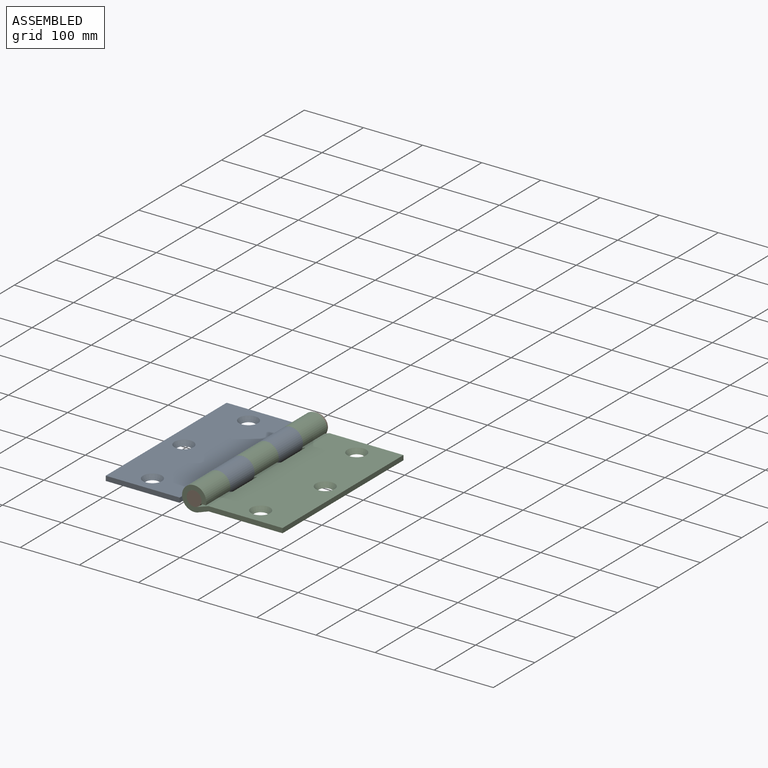
[diagram: assembled view]
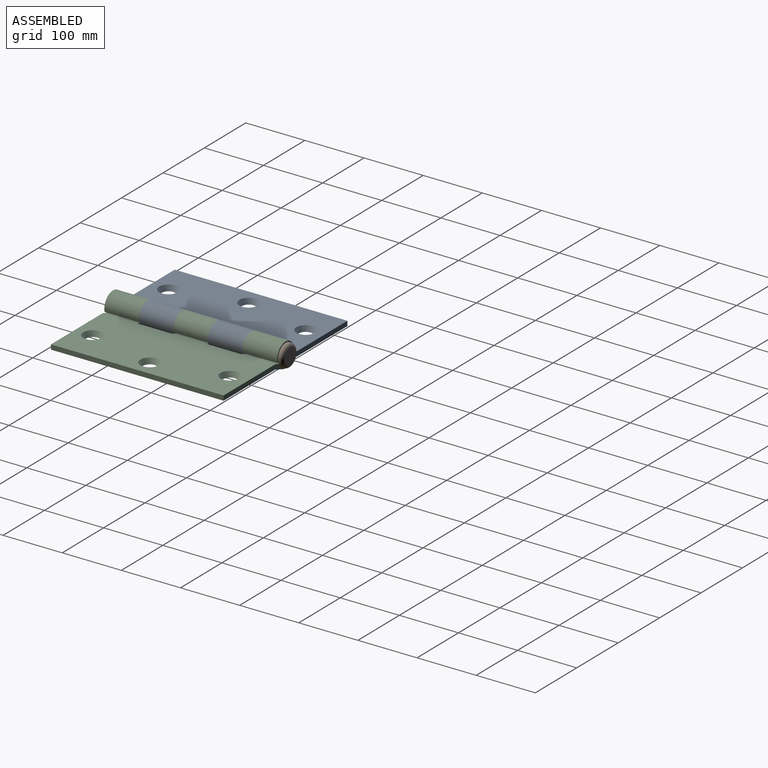
[diagram: assembled view, second angle]
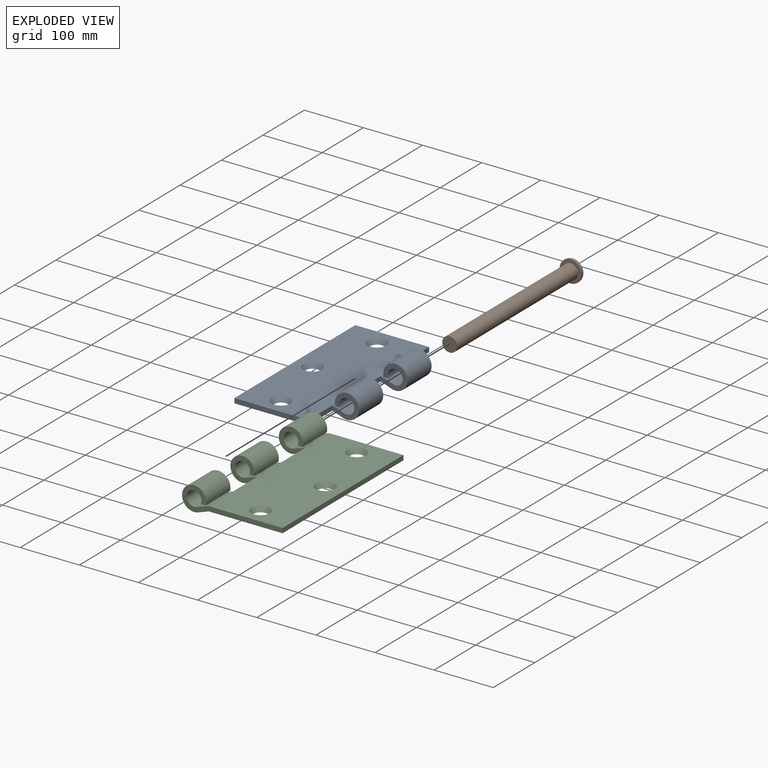
[diagram: exploded view]
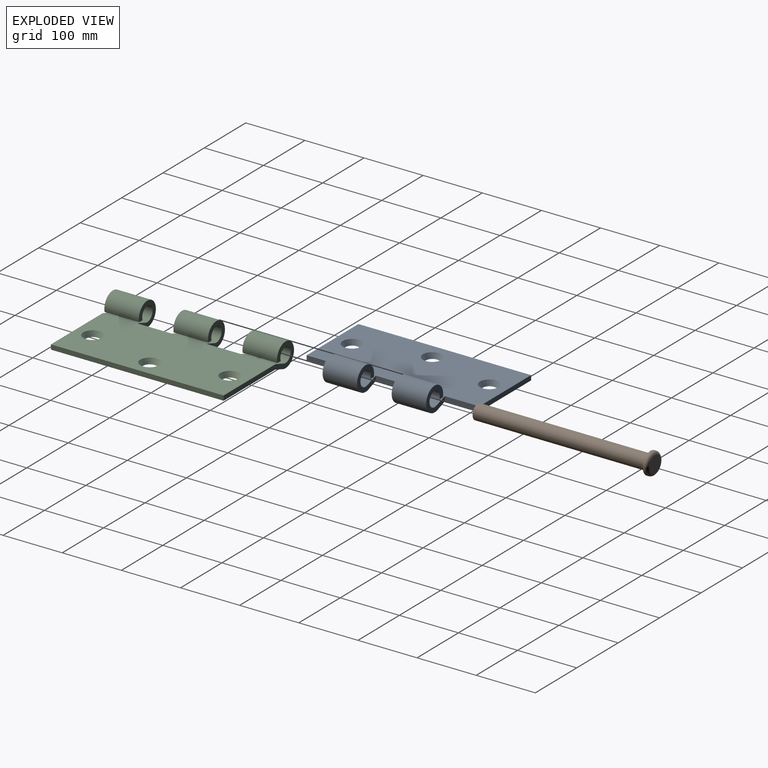
[diagram: exploded view, second angle]
ASSEMBLY  parts=3 mates=2
PART A: 25 faces, bbox 170x292x41 mm
  f0: plane 125x8mm, normal (0,1,0), area 1000mm2, adj f12,f13,f14,f23
  f1: plane 125x8mm, normal (0,-1,0), area 1000mm2, adj f12,f13,f14,f18
  f2: plane 58.4x20.54mm, normal (0.32,0,0.95), area 1264.7mm2, adj f4,f13,f21,f24
  f3: plane 58.4x20.54mm, normal (0.32,0,0.95), area 1264.7mm2, adj f5,f13,f19,f22
  f4: cylinder r=12.5mm len=58.4mm, axis (0,-1,0), area 3975.6mm2, adj f2,f6,f21,f24
  f5: cylinder r=12.5mm len=58.4mm, axis (0,-1,0), area 3975.6mm2, adj f3,f7,f19,f22
  f6: plane 58.4x8.42mm, normal (0,0,-1), area 492mm2, adj f4,f8,f21,f24
  f7: plane 58.4x8.42mm, normal (0,0,-1), area 492mm2, adj f5,f9,f19,f22
  f8: cylinder r=20.5mm len=58.4mm, axis (0,-1,0), area 6348.4mm2, adj f6,f10,f21,f24
  f9: cylinder r=20.5mm len=58.4mm, axis (0,-1,0), area 6348.4mm2, adj f7,f11,f19,f22
  f10: plane 58.4x17.59mm, normal (-0.34,0,-0.94), area 1091mm2, adj f8,f14,f21,f24
  f11: plane 58.4x17.59mm, normal (-0.34,0,-0.94), area 1091mm2, adj f9,f14,f19,f22
  f12: plane 292x8mm, normal (-1,0,0), area 2336mm2, adj f0,f1,f13,f14
  f13: plane 292x125mm, normal (0,0,1), area 34087.3mm2, adj f0,f1,f2,f3,f12,f15,f16,f17
  f14: plane 292x125mm, normal (0,0,-1), area 35359.6mm2, adj f0,f1,f10,f11,f12,f15,f16,f17
  f15: cone r=16mm half-angle=32deg, axis (0,0,1), area 800.2mm2, adj f13,f14
  f16: cone r=11mm half-angle=32deg, axis (0,0,1), area 800.2mm2, adj f13,f14
  f17: cone r=16mm half-angle=32deg, axis (0,0,1), area 800.2mm2, adj f13,f14
  f18: plane 58.4x8mm, normal (1,0,0), area 467.2mm2, adj f1,f13,f14,f19
  f19: plane 45x41mm, normal (0,-1,0), area 864mm2, adj f3,f5,f7,f9,f11,f18
  f20: plane 58.4x8mm, normal (1,0,0), area 467.2mm2, adj f13,f14,f21,f22
  f21: plane 45x41mm, normal (0,-1,0), area 864mm2, adj f2,f4,f6,f8,f10,f20
  f22: plane 45x41mm, normal (0,1,0), area 864mm2, adj f3,f5,f7,f9,f11,f20
  f23: plane 58.4x8mm, normal (1,0,0), area 467.2mm2, adj f0,f13,f14,f24
  f24: plane 45x41mm, normal (0,1,0), area 864mm2, adj f2,f4,f6,f8,f10,f23
PART B: 6 faces, bbox 40x300x40 mm
  f0: cylinder r=12.5mm len=292mm, axis (0,-1,0), area 22933.6mm2, adj f1,f4
  f1: plane 25x25mm, normal (0,-1,0), area 490.9mm2, adj f0
  f2: cylinder r=18.5mm len=37mm, axis (0,-1,0), area 348.7mm2, adj f4,f5
  f3: plane 27x27mm, normal (0,1,0), area 572.6mm2, adj f5
  f4: plane 37x37mm, normal (0,-1,0), area 584.3mm2, adj f0,f2
  f5: torus R=13.5mm, axis (0,1,0), area 823.3mm2, adj f2,f3
PART C: 29 faces, bbox 170x292x41 mm
  f0: plane 58.4x20.54mm, normal (-0.32,0,0.95), area 1264.7mm2, adj f2,f13,f24,f27
  f1: plane 58.4x20.54mm, normal (-0.32,0,0.95), area 1264.7mm2, adj f3,f10,f13,f25
  f2: cylinder r=12.5mm len=58.4mm, axis (0,-1,0), area 3975.6mm2, adj f0,f4,f24,f27
  f3: cylinder r=12.5mm len=58.4mm, axis (0,-1,0), area 3975.6mm2, adj f1,f5,f10,f25
  f4: plane 58.4x8.42mm, normal (0,0,-1), area 492mm2, adj f2,f6,f24,f27
  f5: plane 58.4x8.42mm, normal (0,0,-1), area 492mm2, adj f3,f7,f10,f25
  f6: cylinder r=20.5mm len=58.4mm, axis (0,-1,0), area 6348.4mm2, adj f4,f8,f24,f27
  f7: cylinder r=20.5mm len=58.4mm, axis (0,-1,0), area 6348.4mm2, adj f5,f9,f10,f25
  f8: plane 58.4x17.59mm, normal (0.34,0,-0.94), area 1091mm2, adj f6,f14,f24,f27
  f9: plane 58.4x17.59mm, normal (0.34,0,-0.94), area 1091mm2, adj f7,f10,f14,f25
  f10: plane 170x41mm, normal (0,1,0), area 1864mm2, adj f1,f3,f5,f7,f9,f12,f13,f14
  f11: plane 170x41mm, normal (0,-1,0), area 1864mm2, adj f12,f13,f14,f15,f16,f17,f18,f19
  f12: plane 292x8mm, normal (1,0,0), area 2336mm2, adj f10,f11,f13,f14
  f13: plane 292x125mm, normal (0,0,1), area 34087.3mm2, adj f0,f1,f10,f11,f12,f15,f20,f21
  f14: plane 292x125mm, normal (0,0,-1), area 35359.6mm2, adj f8,f9,f10,f11,f12,f19,f20,f21
  f15: plane 58.39x20.54mm, normal (-0.32,0,0.95), area 1264.5mm2, adj f11,f13,f16,f28
  f16: cylinder r=12.5mm len=58.39mm, axis (0,-1,0), area 3975mm2, adj f11,f15,f17,f28
  f17: plane 58.39x8.42mm, normal (0,0,-1), area 491.9mm2, adj f11,f16,f18,f28
  f18: cylinder r=20.5mm len=58.39mm, axis (0,-1,0), area 6347.3mm2, adj f11,f17,f19,f28
  f19: plane 58.39x17.59mm, normal (0.34,0,-0.94), area 1090.8mm2, adj f11,f14,f18,f28
  f20: cone r=16mm half-angle=32deg, axis (0,0,1), area 800.2mm2, adj f13,f14
  f21: cone r=11mm half-angle=32deg, axis (0,0,1), area 800.2mm2, adj f13,f14
  f22: cone r=16mm half-angle=32deg, axis (0,0,1), area 800.2mm2, adj f13,f14
  f23: plane 58.4x8mm, normal (-1,0,0), area 467.2mm2, adj f13,f14,f24,f25
  f24: plane 45x41mm, normal (0,1,0), area 864mm2, adj f0,f2,f4,f6,f8,f23
  f25: plane 45x41mm, normal (0,-1,0), area 864mm2, adj f1,f3,f5,f7,f9,f23
  f26: plane 58.41x8mm, normal (-1,0,0), area 467.3mm2, adj f13,f14,f27,f28
  f27: plane 45x41mm, normal (0,-1,0), area 864mm2, adj f0,f2,f4,f6,f8,f26
  f28: plane 45x41mm, normal (0,1,0), area 864mm2, adj f15,f16,f17,f18,f19,f26
PLACE A t=(348.4,-131.63,126.71)mm
PLACE B t=(60.22,-491.13,121.16)mm
PLACE C t=(125.4,-131.63,126.71)mm
MATE fastened A.f4 <-> C.f2  axis (0,1,0) through (38.4,-44.03,139.71)mm
MATE slider B.f0 <-> C.f2  axis (0,-1,0) through (38.4,-277.63,139.71)mm
